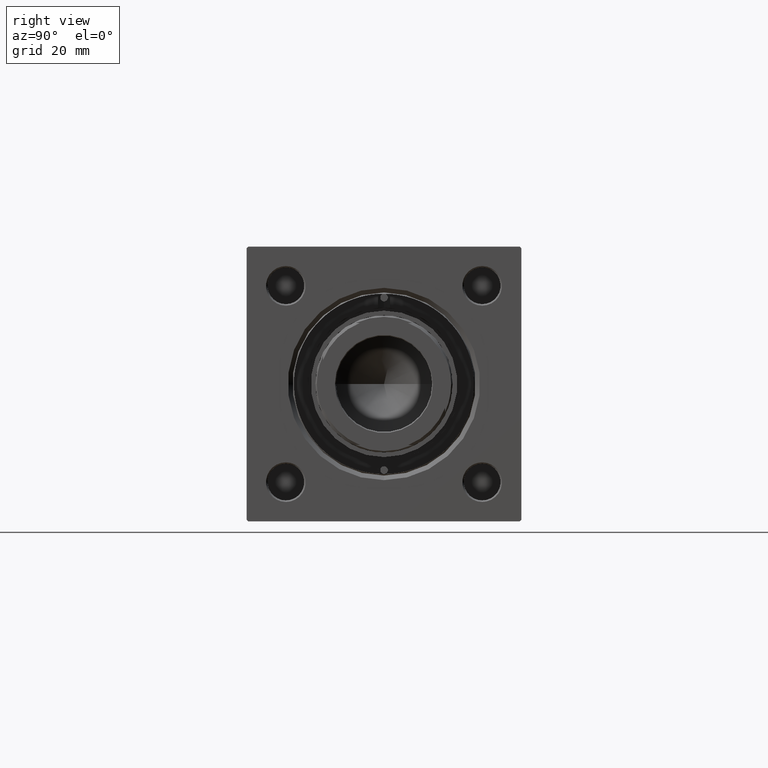
[diagram: clean part render]
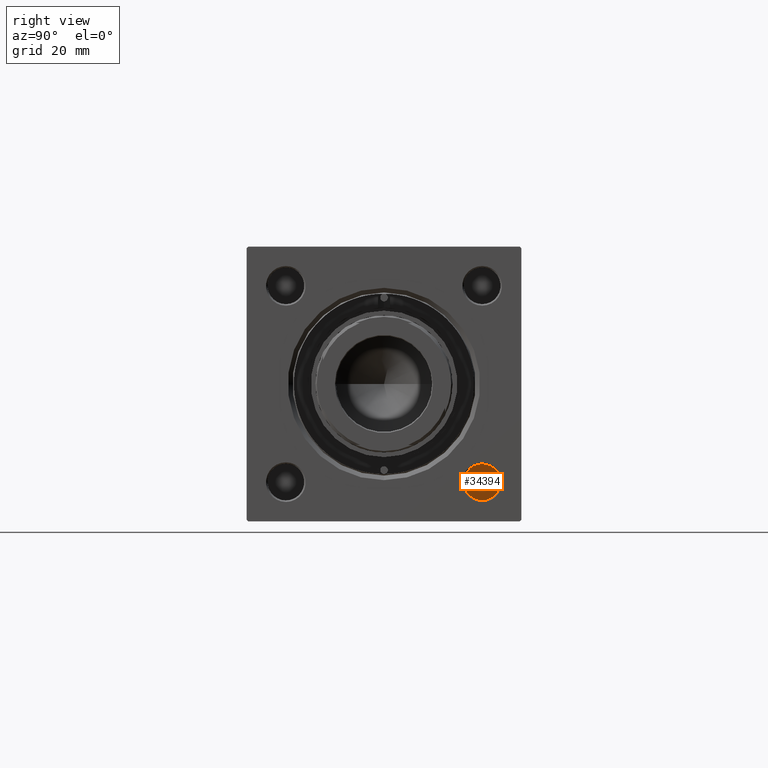
[diagram: same view with one face highlighted and labeled with its STEP entity id]
A machine part, right view. The second image highlights one B-rep face of the part: STEP entity #34394.
In plain terms, the highlighted planar face has unit normal (1, 0, 0).
Its self-contained STEP definition (entity closure, byte-faithful):
#1829 = VERTEX_POINT ( 'NONE', #33069 ) ;
#2499 = AXIS2_PLACEMENT_3D ( 'NONE', #7081, #18781, #41695 ) ;
#5779 = DIRECTION ( 'NONE',  ( 0.000000000000000000, 0.000000000000000000, -1.000000000000000000 ) ) ;
#6424 = EDGE_CURVE ( 'NONE', #1829, #20180, #36528, .T. ) ;
#7081 = CARTESIAN_POINT ( 'NONE',  ( 130.0000000000000000, 32.14999999999999147, -32.15000000000000568 ) ) ;
#8542 = CARTESIAN_POINT ( 'NONE',  ( 130.0000000000000000, 32.14999999999999147, -38.15000000000000568 ) ) ;
#9684 = EDGE_CURVE ( 'NONE', #20180, #1829, #43910, .T. ) ;
#11060 = DIRECTION ( 'NONE',  ( 1.000000000000000000, 0.000000000000000000, 0.000000000000000000 ) ) ;
#11310 = PLANE ( 'NONE',  #24239 ) ;
#15880 = FACE_OUTER_BOUND ( 'NONE', #21718, .T. ) ;
#18781 = DIRECTION ( 'NONE',  ( 1.000000000000000000, 0.000000000000000000, 0.000000000000000000 ) ) ;
#20180 = VERTEX_POINT ( 'NONE', #8542 ) ;
#21718 = EDGE_LOOP ( 'NONE', ( #24463, #33693 ) ) ;
#22067 = CARTESIAN_POINT ( 'NONE',  ( 130.0000000000000000, 32.14999999999999147, -32.15000000000000568 ) ) ;
#24239 = AXIS2_PLACEMENT_3D ( 'NONE', #46138, #11060, #42586 ) ;
#24463 = ORIENTED_EDGE ( 'NONE', *, *, #9684, .T. ) ;
#26729 = AXIS2_PLACEMENT_3D ( 'NONE', #22067, #44694, #5779 ) ;
#33069 = CARTESIAN_POINT ( 'NONE',  ( 130.0000000000000000, 32.14999999999999147, -26.15000000000000924 ) ) ;
#33693 = ORIENTED_EDGE ( 'NONE', *, *, #6424, .T. ) ;
#34394 = ADVANCED_FACE ( 'NONE', ( #15880 ), #11310, .T. ) ;
#36528 = CIRCLE ( 'NONE', #26729, 5.999999999999998224 ) ;
#41695 = DIRECTION ( 'NONE',  ( 0.000000000000000000, 0.000000000000000000, -1.000000000000000000 ) ) ;
#42586 = DIRECTION ( 'NONE',  ( 0.000000000000000000, 0.000000000000000000, -1.000000000000000000 ) ) ;
#43910 = CIRCLE ( 'NONE', #2499, 5.999999999999998224 ) ;
#44694 = DIRECTION ( 'NONE',  ( 1.000000000000000000, 0.000000000000000000, 0.000000000000000000 ) ) ;
#46138 = CARTESIAN_POINT ( 'NONE',  ( 130.0000000000000000, 32.14999999999999147, -32.15000000000000568 ) ) ;